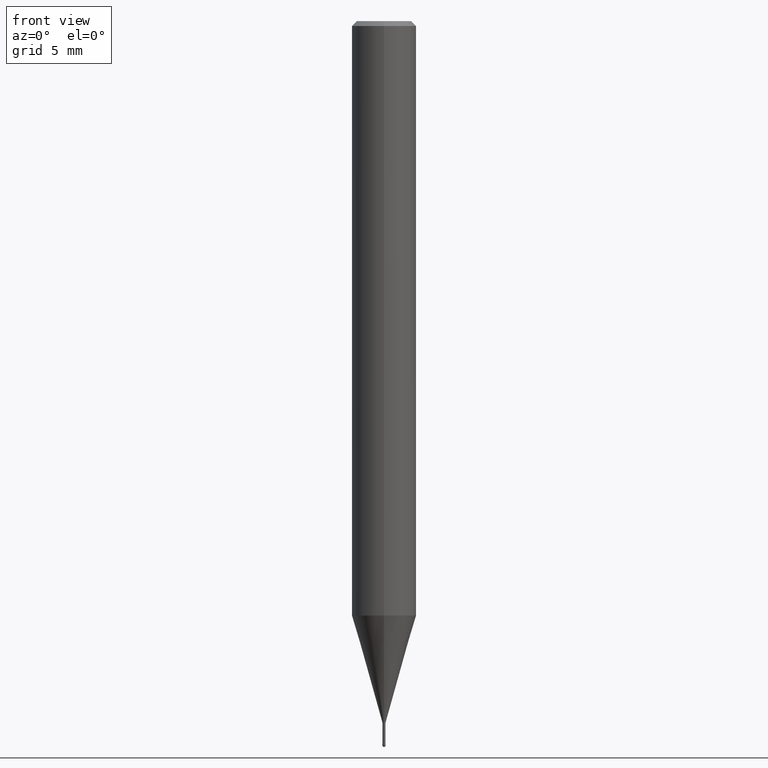
[diagram: clean part render]
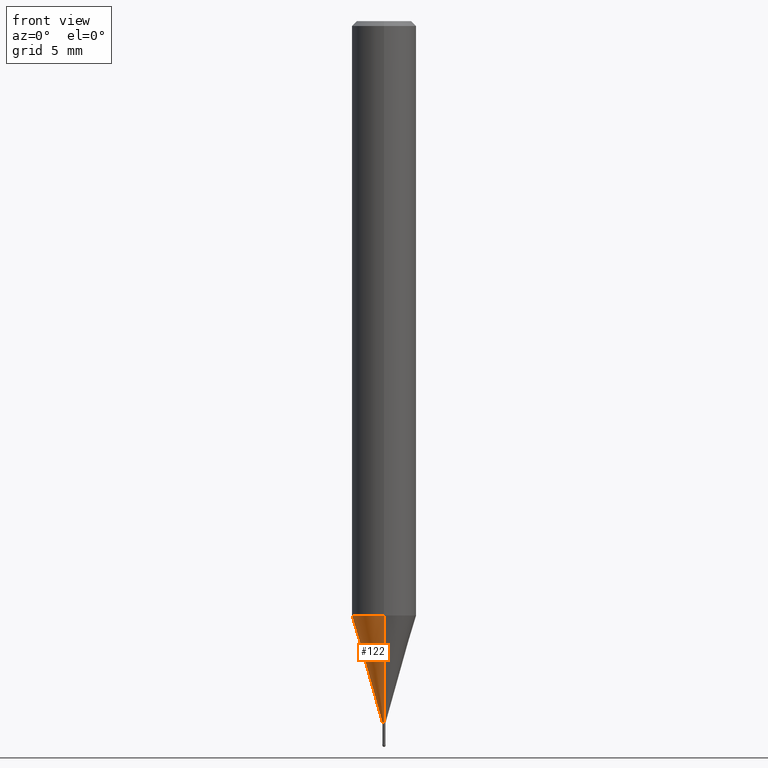
[diagram: same view with one face highlighted and labeled with its STEP entity id]
A machine part, front view. The second image highlights one B-rep face of the part: STEP entity #122.
In plain terms, the highlighted conical surface has half-angle 15.999 deg.
Its self-contained STEP definition (entity closure, byte-faithful):
#94=VERTEX_POINT('',#235);
#122=ADVANCED_FACE('',(#264),#265,.T.);
#130=EDGE_CURVE('',#132,#148,#273,.T.);
#132=VERTEX_POINT('',#275);
#148=VERTEX_POINT('',#292);
#176=EDGE_CURVE('',#194,#94,#327,.T.);
#180=EDGE_CURVE('',#148,#194,#332,.T.);
#192=EDGE_CURVE('',#132,#94,#347,.T.);
#194=VERTEX_POINT('',#349);
#235=CARTESIAN_POINT('',(0.0,0.09495,-43.5));
#264=FACE_OUTER_BOUND('',#424,.T.);
#265=CONICAL_SURFACE('',#425,1.04745,0.279233718115795);
#273=LINE('',#436,#437);
#275=CARTESIAN_POINT('',(1.16276373295435E-017,-0.09495,-43.5));
#292=CARTESIAN_POINT('',(2.44915147732706E-016,-1.99995,-36.856));
#327=LINE('',#500,#501);
#332=CIRCLE('',#507,1.99995);
#347=CIRCLE('',#525,0.09495);
#349=CARTESIAN_POINT('',(0.0,1.99995,-36.856));
#424=EDGE_LOOP('',(#583,#584,#585,#586));
#425=AXIS2_PLACEMENT_3D('',#587,#588,#589);
#436=CARTESIAN_POINT('',(1.28271392531125E-016,-1.04745,-40.178));
#437=VECTOR('',#596,1.0);
#500=CARTESIAN_POINT('',(-1.28271392531125E-016,1.04745,-40.178));
#501=VECTOR('',#676,1.0);
#507=AXIS2_PLACEMENT_3D('',#685,#686,#687);
#525=AXIS2_PLACEMENT_3D('',#711,#712,#713);
#583=ORIENTED_EDGE('',*,*,#176,.T.);
#584=ORIENTED_EDGE('',*,*,#192,.F.);
#585=ORIENTED_EDGE('',*,*,#130,.T.);
#586=ORIENTED_EDGE('',*,*,#180,.T.);
#587=CARTESIAN_POINT('',(0.0,0.0,-40.178));
#588=DIRECTION('',(-0.0,-0.0,1.0));
#589=DIRECTION('',(0.0,1.0,0.0));
#596=DIRECTION('',(3.37524935540219E-017,-0.275619128127744,0.961266922457078));
#676=DIRECTION('',(3.37524935540219E-017,-0.275619128127744,-0.961266922457078));
#685=CARTESIAN_POINT('',(0.0,0.0,-36.856));
#686=DIRECTION('',(0.0,0.0,-1.0));
#687=DIRECTION('',(0.0,1.0,0.0));
#711=CARTESIAN_POINT('',(0.0,0.0,-43.5));
#712=DIRECTION('',(0.0,0.0,-1.0));
#713=DIRECTION('',(0.0,1.0,0.0));